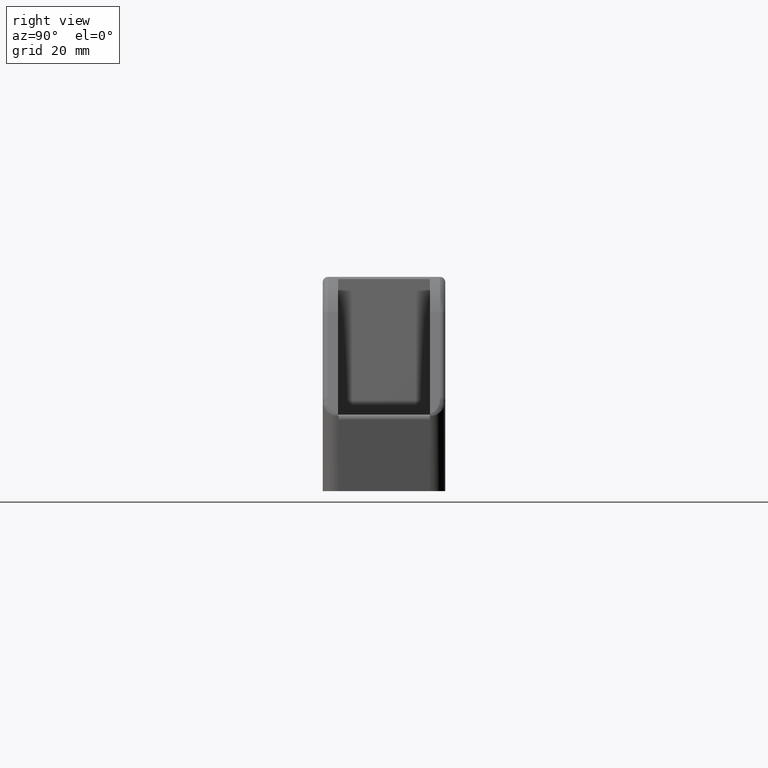
[diagram: clean part render]
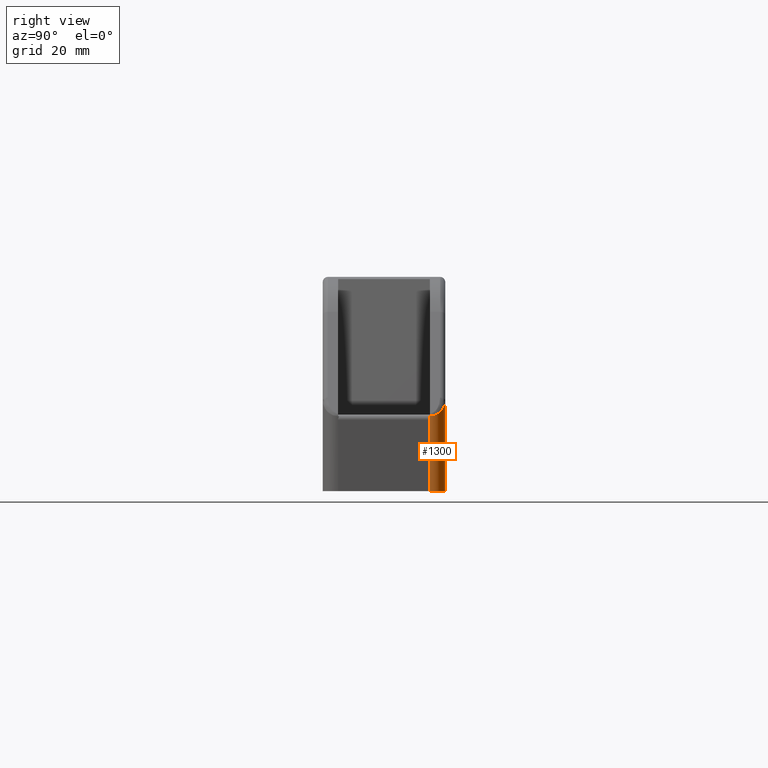
[diagram: same view with one face highlighted and labeled with its STEP entity id]
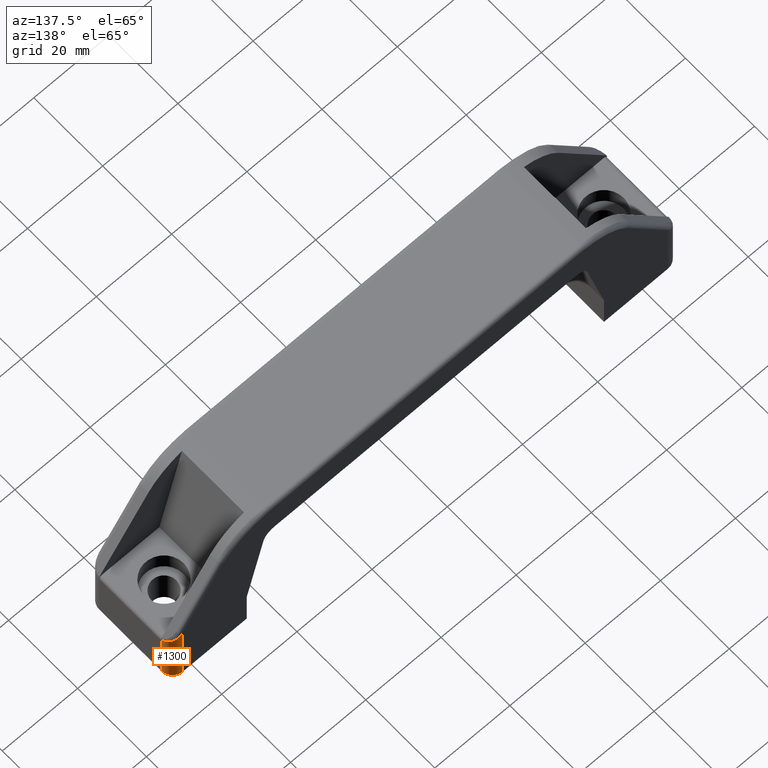
[diagram: same view with one face highlighted and labeled with its STEP entity id]
A machine part, right view. The second image highlights one B-rep face of the part: STEP entity #1300.
A second angle (auxiliary view) of the same face is appended — the face is thin or edge-on in the first view.
In plain terms, the highlighted cylindrical surface (edge-blend (fillet) strip) has radius 3 mm, axis along (0, 0, -1).
Its self-contained STEP definition (entity closure, byte-faithful):
#419=CARTESIAN_POINT('',(125.999999999495710,8.999999999952220,-1.052491E-013));
#420=VERTEX_POINT('',#419);
#445=CARTESIAN_POINT('',(122.999999999495710,11.999999999952220,-1.108003E-013));
#446=VERTEX_POINT('',#445);
#453=CARTESIAN_POINT('',(122.999999999495710,8.999999999952220,-1.052491E-013));
#454=DIRECTION('',(2.171965E-015,5.719145E-017,-1.0));
#455=DIRECTION('',(6.052323E-018,1.0,5.719145E-017));
#456=AXIS2_PLACEMENT_3D('',#453,#454,#455);
#457=CIRCLE('',#456,2.999999999999998);
#458=EDGE_CURVE('',#446,#420,#457,.T.);
#1039=CARTESIAN_POINT('',(122.999999999495670,11.999999999952218,17.789982795003773));
#1040=VERTEX_POINT('',#1039);
#1047=CARTESIAN_POINT('',(122.999999999495710,11.999999999952220,-1.108003E-013));
#1048=DIRECTION('',(0.0,0.0,1.0));
#1049=VECTOR('',#1048,17.789982795003887);
#1050=LINE('',#1047,#1049);
#1051=EDGE_CURVE('',#446,#1040,#1050,.T.);
#1247=CARTESIAN_POINT('',(122.999999999495710,8.999999999952220,-1.110223E-013));
#1248=DIRECTION('',(2.101901E-015,5.719145E-017,-1.0));
#1249=DIRECTION('',(6.052323E-018,1.0,5.719145E-017));
#1250=AXIS2_PLACEMENT_3D('',#1247,#1248,#1249);
#1251=CYLINDRICAL_SURFACE('',#1250,2.999999999999998);
#1252=ORIENTED_EDGE('',*,*,#1051,.T.);
#1253=CARTESIAN_POINT('',(125.999999999495690,9.000000000015342,14.704268509289188));
#1254=VERTEX_POINT('',#1253);
#1255=CARTESIAN_POINT('',(122.999999999495670,11.999999999952218,17.789982795003773));
#1256=CARTESIAN_POINT('',(123.112199737123870,11.999999999952218,17.674577350586169));
#1257=CARTESIAN_POINT('',(123.336598869669220,11.987398006842829,17.443766814253806));
#1258=CARTESIAN_POINT('',(123.668964917305570,11.930926753913440,17.101904593827740));
#1259=CARTESIAN_POINT('',(123.992918269296130,11.837597396489533,16.768695431780280));
#1260=CARTESIAN_POINT('',(124.304385117676970,11.708583605392334,16.448329530588502));
#1261=CARTESIAN_POINT('',(124.599448561086090,11.545507803897964,16.144835703081903));
#1262=CARTESIAN_POINT('',(124.874398012228700,11.350420764838240,15.862030553335201));
#1263=CARTESIAN_POINT('',(125.125775820430380,11.125775820886920,15.603470522041990));
#1264=CARTESIAN_POINT('',(125.350420764381680,10.874398012685234,15.372407151120603));
#1265=CARTESIAN_POINT('',(125.545507803441420,10.599448561542657,15.171746196659138));
#1266=CARTESIAN_POINT('',(125.708583604935780,10.304385118133510,15.004011086550607));
#1267=CARTESIAN_POINT('',(125.837597396033000,9.992918269752662,14.871311187136323));
#1268=CARTESIAN_POINT('',(125.930926753456900,9.668964917762144,14.775315276643143));
#1269=CARTESIAN_POINT('',(125.987398006386290,9.336598870125735,14.717230559344339));
#1270=CARTESIAN_POINT('',(125.999999999495670,9.112199737580426,14.704268509288964));
#1271=CARTESIAN_POINT('',(125.999999999495670,8.999999999952220,14.704268509288964));
#1272=B_SPLINE_CURVE_WITH_KNOTS('',3,(#1255,#1256,#1257,#1258,#1259,#1260,#1261,#1262,#1263,#1264,#1265,#1266,#1267,#1268,#1269,#1270,#1271),.UNSPECIFIED.,.F.,.U.,(4,1,1,1,1,1,1,1,1,1,1,1,1,1,4),(-17.341768189366888,-16.928868946762915,-16.515969704158941,-16.103070461554967,-15.690171218950994,-15.277271976347020,-14.864372733743050,-14.451473491139076,-14.038574248535101,-13.625675005931129,-13.212775763327155,-12.799876520723181,-12.386977278119208,-11.974078035515234,-11.561178792911260),.UNSPECIFIED.);
#1273=EDGE_CURVE('',#1040,#1254,#1272,.T.);
#1274=ORIENTED_EDGE('',*,*,#1273,.T.);
#1275=CARTESIAN_POINT('',(125.999999999495690,8.999999999952220,14.352134254614425));
#1276=VERTEX_POINT('',#1275);
#1277=CARTESIAN_POINT('',(125.999999999495690,8.999999999952220,14.704268509288964));
#1278=DIRECTION('',(0.0,0.0,-1.0));
#1279=VECTOR('',#1278,0.352134254674539);
#1280=LINE('',#1277,#1279);
#1281=EDGE_CURVE('',#1254,#1276,#1280,.T.);
#1282=ORIENTED_EDGE('',*,*,#1281,.T.);
#1283=CARTESIAN_POINT('',(125.999999999495690,8.999999999952220,13.999999999939890));
#1284=VERTEX_POINT('',#1283);
#1285=CARTESIAN_POINT('',(125.999999999495690,8.999999999952220,14.352134254614425));
#1286=DIRECTION('',(0.0,0.0,-1.0));
#1287=VECTOR('',#1286,0.352134254674535);
#1288=LINE('',#1285,#1287);
#1289=EDGE_CURVE('',#1276,#1284,#1288,.T.);
#1290=ORIENTED_EDGE('',*,*,#1289,.T.);
#1291=CARTESIAN_POINT('',(125.999999999495710,8.999999999952220,-1.052491E-013));
#1292=DIRECTION('',(0.0,0.0,1.0));
#1293=VECTOR('',#1292,13.999999999939996);
#1294=LINE('',#1291,#1293);
#1295=EDGE_CURVE('',#420,#1284,#1294,.T.);
#1296=ORIENTED_EDGE('',*,*,#1295,.F.);
#1297=ORIENTED_EDGE('',*,*,#458,.F.);
#1298=EDGE_LOOP('',(#1252,#1274,#1282,#1290,#1296,#1297));
#1299=FACE_OUTER_BOUND('',#1298,.T.);
#1300=ADVANCED_FACE('',(#1299),#1251,.T.);